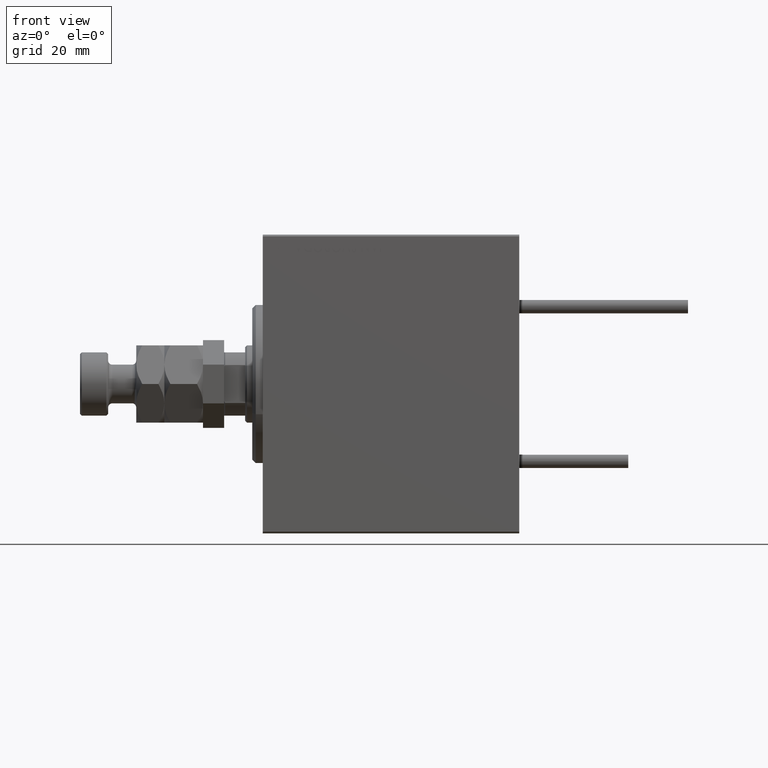
[diagram: clean part render]
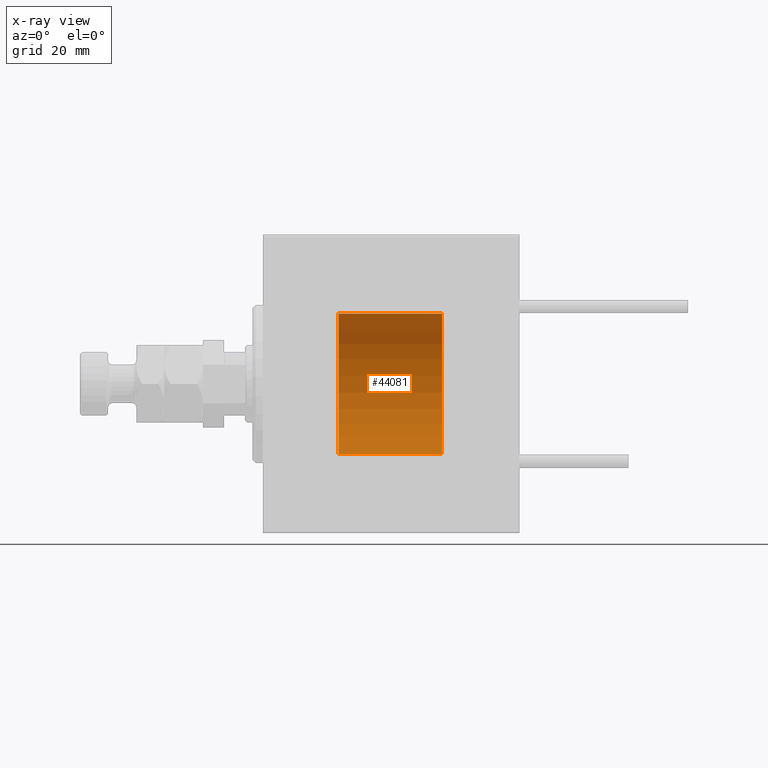
[diagram: x-ray — body ghosted, one internal face saturated and labeled with its STEP entity id]
A machine part, front view, then the same camera in x-ray: the body is ghosted and one INTERNAL B-rep face — a face not visible from any outside direction — is saturated and labeled: STEP entity #44081.
In plain terms, the highlighted cylindrical surface (partial cylindrical patch) has radius 20 mm, axis along (-1, -0, -0).
Its self-contained STEP definition (entity closure, byte-faithful):
#1584 = CARTESIAN_POINT ( 'NONE',  ( 21.60000000000000142, 0.000000000000000000, 0.000000000000000000 ) ) ;
#6232 = CARTESIAN_POINT ( 'NONE',  ( 51.00000000000000000, 0.000000000000000000, 0.000000000000000000 ) ) ;
#6762 = DIRECTION ( 'NONE',  ( -1.000000000000000000, 0.000000000000000000, 0.000000000000000000 ) ) ;
#7225 = DIRECTION ( 'NONE',  ( -1.000000000000000000, -0.000000000000000000, -0.000000000000000000 ) ) ;
#9100 = AXIS2_PLACEMENT_3D ( 'NONE', #41619, #6762, #47054 ) ;
#10450 = DIRECTION ( 'NONE',  ( 0.000000000000000000, 0.000000000000000000, 1.000000000000000000 ) ) ;
#14903 = VERTEX_POINT ( 'NONE', #28099 ) ;
#15582 = CIRCLE ( 'NONE', #28997, 20.00000000000000000 ) ;
#19028 = DIRECTION ( 'NONE',  ( -1.000000000000000000, -0.000000000000000000, -0.000000000000000000 ) ) ;
#20719 = DIRECTION ( 'NONE',  ( -1.000000000000000000, -0.000000000000000000, -0.000000000000000000 ) ) ;
#22083 = EDGE_CURVE ( 'NONE', #35119, #14903, #34225, .T. ) ;
#22233 = DIRECTION ( 'NONE',  ( -1.000000000000000000, 0.000000000000000000, 0.000000000000000000 ) ) ;
#22557 = ORIENTED_EDGE ( 'NONE', *, *, #33231, .T. ) ;
#22566 = AXIS2_PLACEMENT_3D ( 'NONE', #6232, #19028, #38180 ) ;
#23080 = ORIENTED_EDGE ( 'NONE', *, *, #22083, .F. ) ;
#24360 = CARTESIAN_POINT ( 'NONE',  ( 51.00000000000000000, 2.449293598294706513E-15, -20.00000000000000000 ) ) ;
#27141 = CYLINDRICAL_SURFACE ( 'NONE', #22566, 20.00000000000000000 ) ;
#27483 = CIRCLE ( 'NONE', #9100, 20.00000000000000000 ) ;
#28099 = CARTESIAN_POINT ( 'NONE',  ( 21.60000000000000142, 2.449293598294706513E-15, -20.00000000000000000 ) ) ;
#28997 = AXIS2_PLACEMENT_3D ( 'NONE', #1584, #22233, #10450 ) ;
#29758 = CARTESIAN_POINT ( 'NONE',  ( 21.60000000000000142, 0.000000000000000000, 20.00000000000000000 ) ) ;
#30104 = VECTOR ( 'NONE', #20719, 1000.000000000000000 ) ;
#32509 = LINE ( 'NONE', #44811, #30104 ) ;
#33231 = EDGE_CURVE ( 'NONE', #51322, #14903, #15582, .T. ) ;
#34225 = LINE ( 'NONE', #50659, #38350 ) ;
#34735 = VERTEX_POINT ( 'NONE', #40165 ) ;
#35119 = VERTEX_POINT ( 'NONE', #24360 ) ;
#36952 = ORIENTED_EDGE ( 'NONE', *, *, #38604, .F. ) ;
#38180 = DIRECTION ( 'NONE',  ( 0.000000000000000000, 0.000000000000000000, 1.000000000000000000 ) ) ;
#38350 = VECTOR ( 'NONE', #7225, 1000.000000000000000 ) ;
#38604 = EDGE_CURVE ( 'NONE', #34735, #35119, #27483, .T. ) ;
#40165 = CARTESIAN_POINT ( 'NONE',  ( 51.00000000000000000, 0.000000000000000000, 20.00000000000000000 ) ) ;
#41619 = CARTESIAN_POINT ( 'NONE',  ( 51.00000000000000000, 0.000000000000000000, 0.000000000000000000 ) ) ;
#43521 = ORIENTED_EDGE ( 'NONE', *, *, #44787, .T. ) ;
#44081 = ADVANCED_FACE ( 'NONE', ( #50165 ), #27141, .F. ) ;
#44787 = EDGE_CURVE ( 'NONE', #34735, #51322, #32509, .T. ) ;
#44811 = CARTESIAN_POINT ( 'NONE',  ( 51.00000000000000000, 0.000000000000000000, 20.00000000000000000 ) ) ;
#47054 = DIRECTION ( 'NONE',  ( 0.000000000000000000, 0.000000000000000000, 1.000000000000000000 ) ) ;
#48577 = EDGE_LOOP ( 'NONE', ( #23080, #36952, #43521, #22557 ) ) ;
#50165 = FACE_OUTER_BOUND ( 'NONE', #48577, .T. ) ;
#50659 = CARTESIAN_POINT ( 'NONE',  ( 51.00000000000000000, 2.449293598294706513E-15, -20.00000000000000000 ) ) ;
#51322 = VERTEX_POINT ( 'NONE', #29758 ) ;